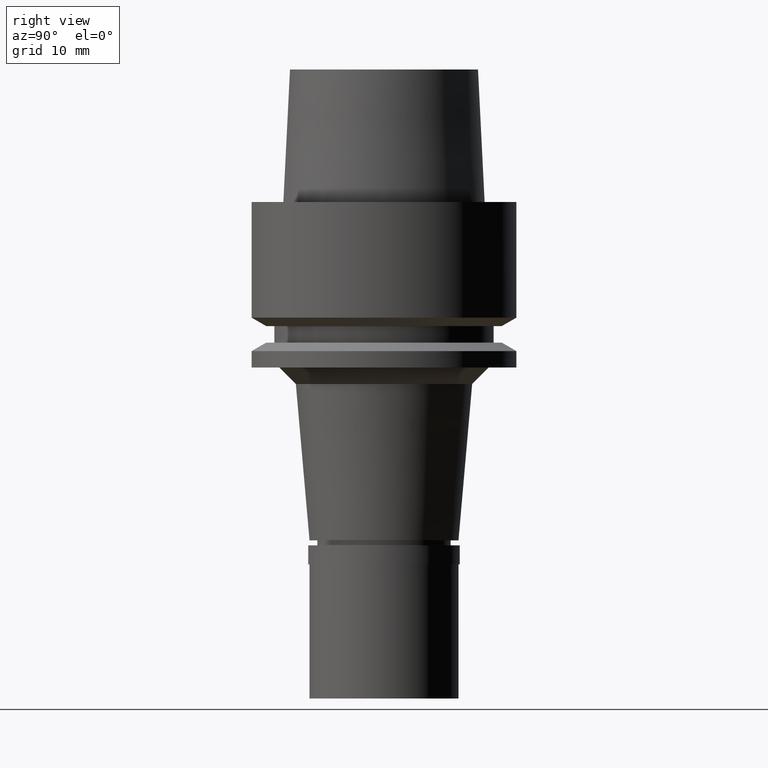
[diagram: clean part render]
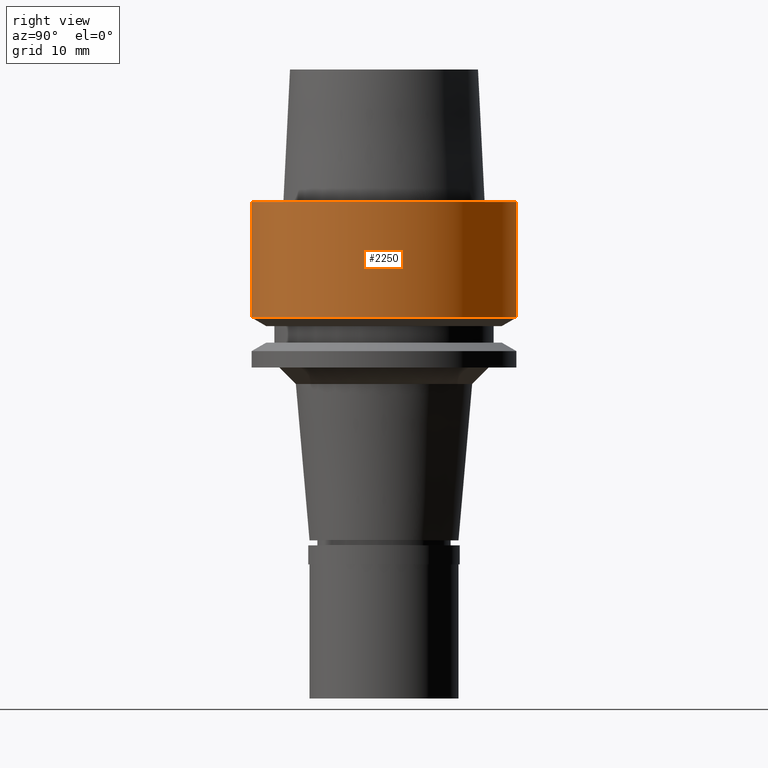
[diagram: same view with one face highlighted and labeled with its STEP entity id]
A machine part, right view. The second image highlights one B-rep face of the part: STEP entity #2250.
In plain terms, the highlighted cylindrical surface (partial cylindrical patch) has radius 16 mm, axis along (0, 0, -1).
Its self-contained STEP definition (entity closure, byte-faithful):
#41 = DIRECTION ( 'NONE',  ( 0.0000000000000000000, -6.772870976582999535E-14, -1.000000000000000000 ) ) ;
#137 = EDGE_CURVE ( 'NONE', #225, #1485, #403, .T. ) ;
#197 = AXIS2_PLACEMENT_3D ( 'NONE', #2413, #1768, #1176 ) ;
#225 = VERTEX_POINT ( 'NONE', #1068 ) ;
#268 = CARTESIAN_POINT ( 'NONE',  ( 0.0000000000000000000, 16.00000000000000000, -13.97927405783999966 ) ) ;
#403 = CIRCLE ( 'NONE', #1579, 16.00000000000000000 ) ;
#425 = ORIENTED_EDGE ( 'NONE', *, *, #2083, .F. ) ;
#512 = DIRECTION ( 'NONE',  ( 0.0000000000000000000, 6.772870976582999535E-14, -1.000000000000000000 ) ) ;
#583 = VECTOR ( 'NONE', #512, 1000.000000000000000 ) ;
#661 = DIRECTION ( 'NONE',  ( 0.0000000000000000000, 0.0000000000000000000, 1.000000000000000000 ) ) ;
#669 = CARTESIAN_POINT ( 'NONE',  ( 0.0000000000000000000, 16.00000000000000000, -1.421085471519999843E-14 ) ) ;
#735 = EDGE_CURVE ( 'NONE', #2401, #225, #1545, .T. ) ;
#1046 = ORIENTED_EDGE ( 'NONE', *, *, #137, .T. ) ;
#1068 = CARTESIAN_POINT ( 'NONE',  ( 0.0000000000000000000, -16.00000000000000000, -13.97927405783999966 ) ) ;
#1112 = ORIENTED_EDGE ( 'NONE', *, *, #1708, .T. ) ;
#1176 = DIRECTION ( 'NONE',  ( 0.0000000000000000000, 1.000000000000000000, 0.0000000000000000000 ) ) ;
#1326 = CARTESIAN_POINT ( 'NONE',  ( 0.0000000000000000000, 0.0000000000000000000, 19.57000000000000028 ) ) ;
#1485 = VERTEX_POINT ( 'NONE', #268 ) ;
#1520 = CARTESIAN_POINT ( 'NONE',  ( 0.0000000000000000000, 0.0000000000000000000, -13.97927405783999966 ) ) ;
#1527 = FACE_OUTER_BOUND ( 'NONE', #2145, .T. ) ;
#1545 = LINE ( 'NONE', #2205, #583 ) ;
#1579 = AXIS2_PLACEMENT_3D ( 'NONE', #1520, #661, #1716 ) ;
#1583 = DIRECTION ( 'NONE',  ( 0.0000000000000000000, 0.0000000000000000000, -1.000000000000000000 ) ) ;
#1708 = EDGE_CURVE ( 'NONE', #2225, #2401, #1951, .T. ) ;
#1716 = DIRECTION ( 'NONE',  ( 0.0000000000000000000, -1.000000000000000000, 0.0000000000000000000 ) ) ;
#1737 = CARTESIAN_POINT ( 'NONE',  ( 0.0000000000000000000, 16.00000000000000000, -1.421085471519999843E-14 ) ) ;
#1765 = VECTOR ( 'NONE', #41, 1000.000000000000000 ) ;
#1768 = DIRECTION ( 'NONE',  ( 0.0000000000000000000, 0.0000000000000000000, -1.000000000000000000 ) ) ;
#1891 = LINE ( 'NONE', #669, #1765 ) ;
#1951 = CIRCLE ( 'NONE', #197, 16.00000000000000000 ) ;
#2083 = EDGE_CURVE ( 'NONE', #2225, #1485, #1891, .T. ) ;
#2145 = EDGE_LOOP ( 'NONE', ( #1112, #2555, #1046, #425 ) ) ;
#2205 = CARTESIAN_POINT ( 'NONE',  ( 0.0000000000000000000, -16.00000000000000000, -1.421085471519999843E-14 ) ) ;
#2225 = VERTEX_POINT ( 'NONE', #1737 ) ;
#2250 = ADVANCED_FACE ( 'NONE', ( #1527 ), #2366, .T. ) ;
#2366 = CYLINDRICAL_SURFACE ( 'NONE', #2643, 16.00000000000000000 ) ;
#2401 = VERTEX_POINT ( 'NONE', #2480 ) ;
#2413 = CARTESIAN_POINT ( 'NONE',  ( 0.0000000000000000000, 0.0000000000000000000, -3.197442310919999608E-14 ) ) ;
#2426 = DIRECTION ( 'NONE',  ( 0.0000000000000000000, -1.000000000000000000, 0.0000000000000000000 ) ) ;
#2480 = CARTESIAN_POINT ( 'NONE',  ( 0.0000000000000000000, -16.00000000000000000, -3.197442310919999608E-14 ) ) ;
#2555 = ORIENTED_EDGE ( 'NONE', *, *, #735, .T. ) ;
#2643 = AXIS2_PLACEMENT_3D ( 'NONE', #1326, #1583, #2426 ) ;